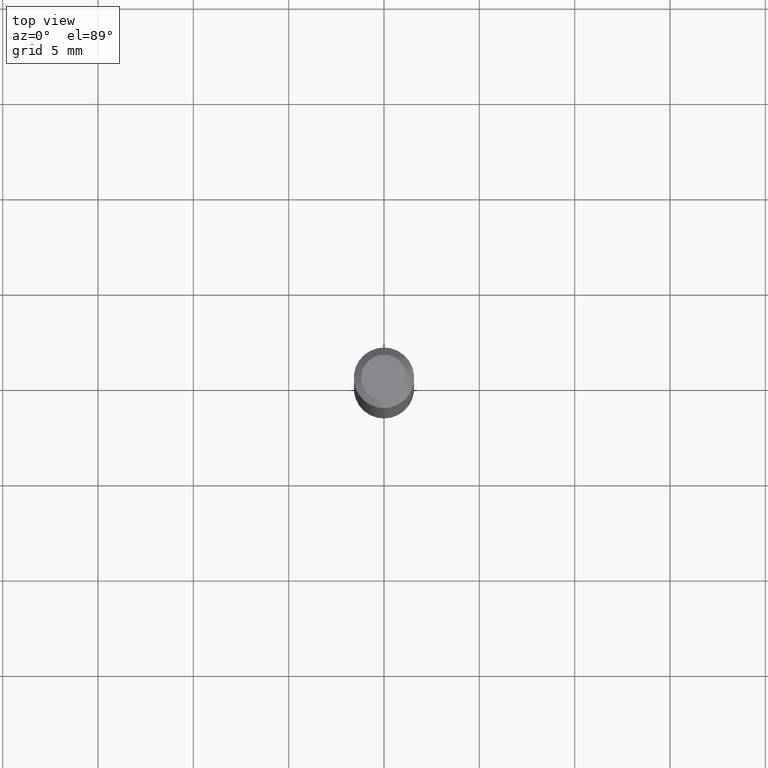
[diagram: clean part render]
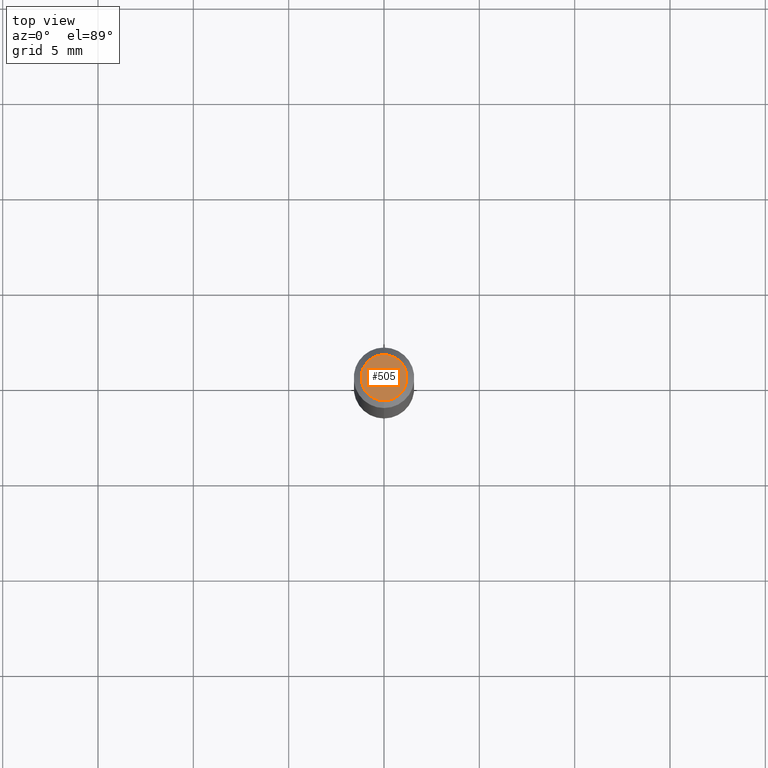
[diagram: same view with one face highlighted and labeled with its STEP entity id]
A machine part, top view. The second image highlights one B-rep face of the part: STEP entity #505.
In plain terms, the highlighted planar face has unit normal (0, -0, -1).
Its self-contained STEP definition (entity closure, byte-faithful):
#41 = PLANE ( 'NONE',  #193 ) ;
#49 = DIRECTION ( 'NONE',  ( -2.445475665972653813E-29, 3.491471515236986079E-15, 1.000000000000000000 ) ) ;
#59 = EDGE_CURVE ( 'NONE', #223, #342, #96, .T. ) ;
#73 = DIRECTION ( 'NONE',  ( -6.982962677686266711E-15, -1.000000000000000000, 3.491471515236986474E-15 ) ) ;
#79 = ORIENTED_EDGE ( 'NONE', *, *, #59, .T. ) ;
#90 = DIRECTION ( 'NONE',  ( 2.445475665972653813E-29, -3.491471515236985685E-15, -1.000000000000000000 ) ) ;
#96 = CIRCLE ( 'NONE', #293, 0.04749999999999999362 ) ;
#100 = CARTESIAN_POINT ( 'NONE',  ( 2.166883706557991878E-46, -3.093718266572590638E-32, -8.860786213123673200E-18 ) ) ;
#103 = AXIS2_PLACEMENT_3D ( 'NONE', #420, #143, #73 ) ;
#112 = EDGE_CURVE ( 'NONE', #342, #223, #238, .T. ) ;
#143 = DIRECTION ( 'NONE',  ( -2.445475665972653813E-29, 3.491471515236986079E-15, 1.000000000000000000 ) ) ;
#187 = ORIENTED_EDGE ( 'NONE', *, *, #112, .T. ) ;
#193 = AXIS2_PLACEMENT_3D ( 'NONE', #321, #90, #282 ) ;
#204 = DIRECTION ( 'NONE',  ( -6.982962677686266711E-15, -1.000000000000000000, 3.491471515236986474E-15 ) ) ;
#223 = VERTEX_POINT ( 'NONE', #492 ) ;
#238 = CIRCLE ( 'NONE', #103, 0.04749999999999999362 ) ;
#282 = DIRECTION ( 'NONE',  ( 6.982962677686265922E-15, 1.000000000000000000, -3.491471515236985685E-15 ) ) ;
#293 = AXIS2_PLACEMENT_3D ( 'NONE', #100, #49, #204 ) ;
#321 = CARTESIAN_POINT ( 'NONE',  ( 3.316907271900976096E-16, 0.04749999999999999362, -1.702752900803186501E-16 ) ) ;
#336 = EDGE_LOOP ( 'NONE', ( #79, #187 ) ) ;
#342 = VERTEX_POINT ( 'NONE', #386 ) ;
#386 = CARTESIAN_POINT ( 'NONE',  ( -3.773273898774340269E-16, -0.04749999999999999362, 1.569841107606331826E-16 ) ) ;
#398 = FACE_OUTER_BOUND ( 'NONE', #336, .T. ) ;
#420 = CARTESIAN_POINT ( 'NONE',  ( 2.166883706557991878E-46, -3.093718266572590638E-32, -8.860786213123673200E-18 ) ) ;
#492 = CARTESIAN_POINT ( 'NONE',  ( 3.840629472727447874E-16, 0.04749999999999999362, -1.747056831868805136E-16 ) ) ;
#505 = ADVANCED_FACE ( 'NONE', ( #398 ), #41, .F. ) ;